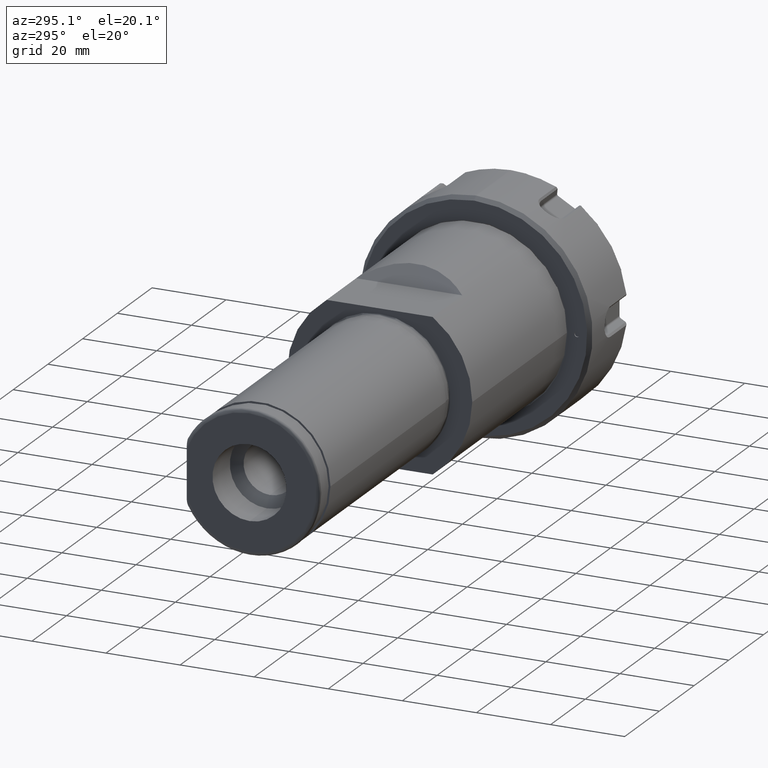
[diagram: clean part render]
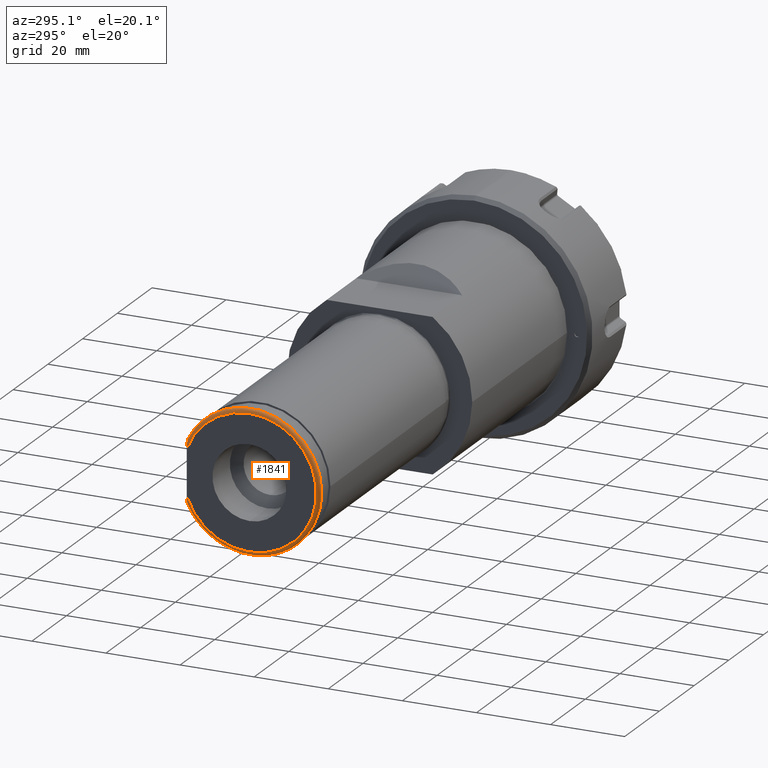
[diagram: same view with one face highlighted and labeled with its STEP entity id]
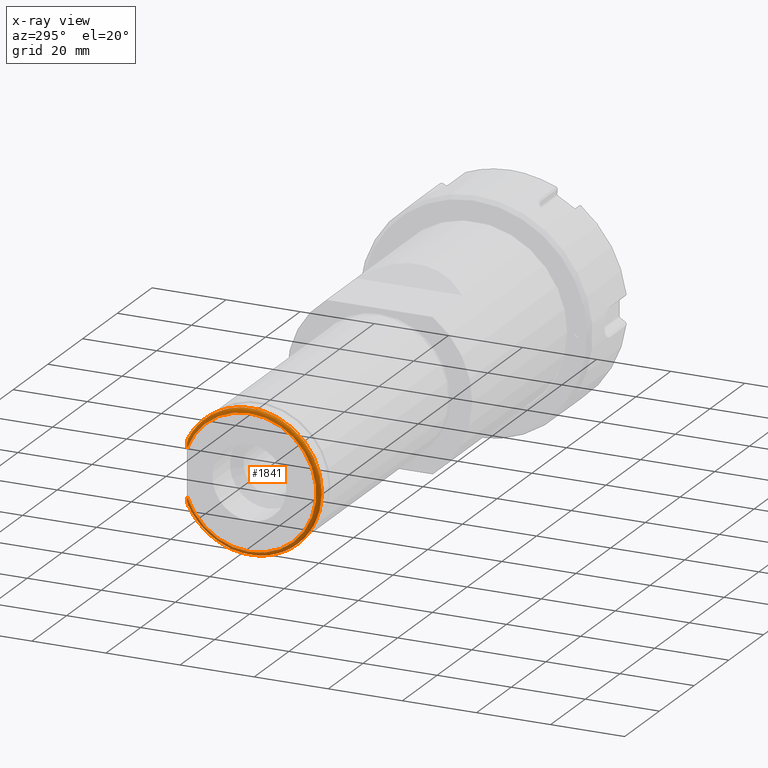
[diagram: x-ray of the same camera — body ghosted, the highlighted face saturated]
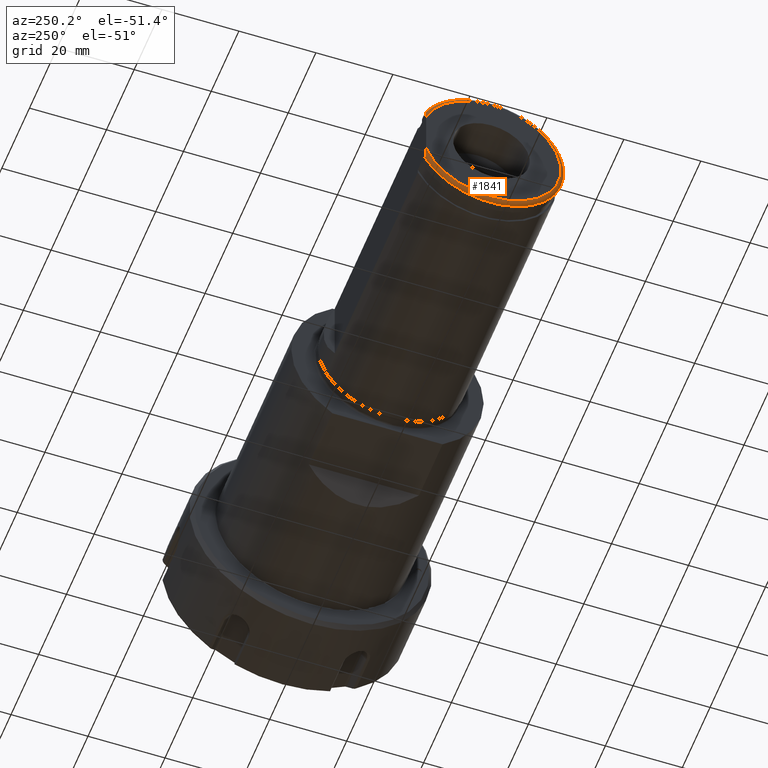
[diagram: same view with one face highlighted and labeled with its STEP entity id]
A machine part, auxiliary view. The second image highlights one B-rep face of the part: STEP entity #1841.
The next image is the same camera in x-ray: the body ghosted, the highlighted face saturated — about 0% of this face is hidden behind the body in this view.
A second angle (auxiliary view) of the same face is appended — the face is thin or edge-on in the first view.
In plain terms, the highlighted toroidal blend (fillet) surface has major radius 18.05 mm and minor (blend) radius 1 mm.
Its self-contained STEP definition (entity closure, byte-faithful):
#117=TOROIDAL_SURFACE('',#2045,18.05,1.);
#147=B_SPLINE_CURVE_WITH_KNOTS('',3,(#2779,#2780,#2781,#2782,#2783,#2784,
#2785,#2786,#2787,#2788,#2789,#2790),.UNSPECIFIED.,.F.,.F.,(4,2,2,2,2,4),
(-0.271642314478685,-0.14200287948374,-0.0700817055574083,-0.0273774061368079,
-0.0128288164394712,0.),.UNSPECIFIED.);
#148=B_SPLINE_CURVE_WITH_KNOTS('',3,(#2794,#2795,#2796,#2797,#2798,#2799,
#2800,#2801,#2802,#2803,#2804,#2805),.UNSPECIFIED.,.F.,.F.,(4,2,2,2,2,4),
(0.,0.0128288164394712,0.0273774061368079,0.0700817055574082,0.14200287948374,
0.271642314478685),.UNSPECIFIED.);
#267=CIRCLE('',#2046,19.05);
#268=CIRCLE('',#2047,18.05);
#351=FACE_OUTER_BOUND('',#463,.T.);
#463=EDGE_LOOP('',(#1315,#1316,#1317,#1318));
#820=VERTEX_POINT('',#2776);
#821=VERTEX_POINT('',#2778);
#822=VERTEX_POINT('',#2791);
#823=VERTEX_POINT('',#2793);
#996=EDGE_CURVE('',#821,#820,#147,.T.);
#998=EDGE_CURVE('',#823,#822,#148,.T.);
#1016=EDGE_CURVE('',#823,#820,#267,.T.);
#1017=EDGE_CURVE('',#822,#821,#268,.T.);
#1315=ORIENTED_EDGE('',*,*,#996,.T.);
#1316=ORIENTED_EDGE('',*,*,#1016,.F.);
#1317=ORIENTED_EDGE('',*,*,#998,.T.);
#1318=ORIENTED_EDGE('',*,*,#1017,.T.);
#1841=ADVANCED_FACE('',(#351),#117,.T.);
#2045=AXIS2_PLACEMENT_3D('',#2838,#2304,#2305);
#2046=AXIS2_PLACEMENT_3D('',#2839,#2306,#2307);
#2047=AXIS2_PLACEMENT_3D('',#2840,#2308,#2309);
#2304=DIRECTION('center_axis',(1.,0.,0.));
#2305=DIRECTION('ref_axis',(0.,-1.,-6.12323399573677E-17));
#2306=DIRECTION('center_axis',(1.,0.,0.));
#2307=DIRECTION('ref_axis',(0.,0.,-1.));
#2308=DIRECTION('center_axis',(1.,0.,0.));
#2309=DIRECTION('ref_axis',(0.,0.,-1.));
#2776=CARTESIAN_POINT('',(-139.,16.95,-8.69482604771362));
#2778=CARTESIAN_POINT('',(-140.,16.95,-6.20483682299543));
#2779=CARTESIAN_POINT('Ctrl Pts',(-140.,16.95,-6.20483682299543));
#2780=CARTESIAN_POINT('Ctrl Pts',(-140.,16.95,-6.63696827297858));
#2781=CARTESIAN_POINT('Ctrl Pts',(-139.960023075646,16.95,-7.15398275557277));
#2782=CARTESIAN_POINT('Ctrl Pts',(-139.800040666996,16.95,-7.80652637413821));
#2783=CARTESIAN_POINT('Ctrl Pts',(-139.705212060339,16.95,-8.0781327428091));
#2784=CARTESIAN_POINT('Ctrl Pts',(-139.50437224137,16.95,-8.40317465772147));
#2785=CARTESIAN_POINT('Ctrl Pts',(-139.39498617068,16.95,-8.53437375285199));
#2786=CARTESIAN_POINT('Ctrl Pts',(-139.233551422594,16.95,-8.63615714498508));
#2787=CARTESIAN_POINT('Ctrl Pts',(-139.180955478612,16.95,-8.66106196523222));
#2788=CARTESIAN_POINT('Ctrl Pts',(-139.093495232326,16.95,-8.68711444337303));
#2789=CARTESIAN_POINT('Ctrl Pts',(-139.042762721465,16.95,-8.69482604771366));
#2790=CARTESIAN_POINT('Ctrl Pts',(-139.,16.95,-8.69482604771366));
#2791=CARTESIAN_POINT('',(-140.,16.95,6.20483682299543));
#2793=CARTESIAN_POINT('',(-139.,16.95,8.69482604771362));
#2794=CARTESIAN_POINT('Ctrl Pts',(-139.,16.95,8.69482604771366));
#2795=CARTESIAN_POINT('Ctrl Pts',(-139.042762721465,16.95,8.69482604771366));
#2796=CARTESIAN_POINT('Ctrl Pts',(-139.093495232326,16.95,8.68711444337303));
#2797=CARTESIAN_POINT('Ctrl Pts',(-139.180955478612,16.95,8.66106196523222));
#2798=CARTESIAN_POINT('Ctrl Pts',(-139.233551422594,16.95,8.63615714498508));
#2799=CARTESIAN_POINT('Ctrl Pts',(-139.39498617068,16.95,8.53437375285199));
#2800=CARTESIAN_POINT('Ctrl Pts',(-139.50437224137,16.95,8.40317465772147));
#2801=CARTESIAN_POINT('Ctrl Pts',(-139.705212060339,16.95,8.0781327428091));
#2802=CARTESIAN_POINT('Ctrl Pts',(-139.800040666996,16.95,7.80652637413821));
#2803=CARTESIAN_POINT('Ctrl Pts',(-139.960023075646,16.95,7.15398275557277));
#2804=CARTESIAN_POINT('Ctrl Pts',(-140.,16.95,6.63696827297858));
#2805=CARTESIAN_POINT('Ctrl Pts',(-140.,16.95,6.20483682299543));
#2838=CARTESIAN_POINT('Origin',(-139.,0.,0.));
#2839=CARTESIAN_POINT('Origin',(-139.,0.,0.));
#2840=CARTESIAN_POINT('Origin',(-140.,0.,0.));